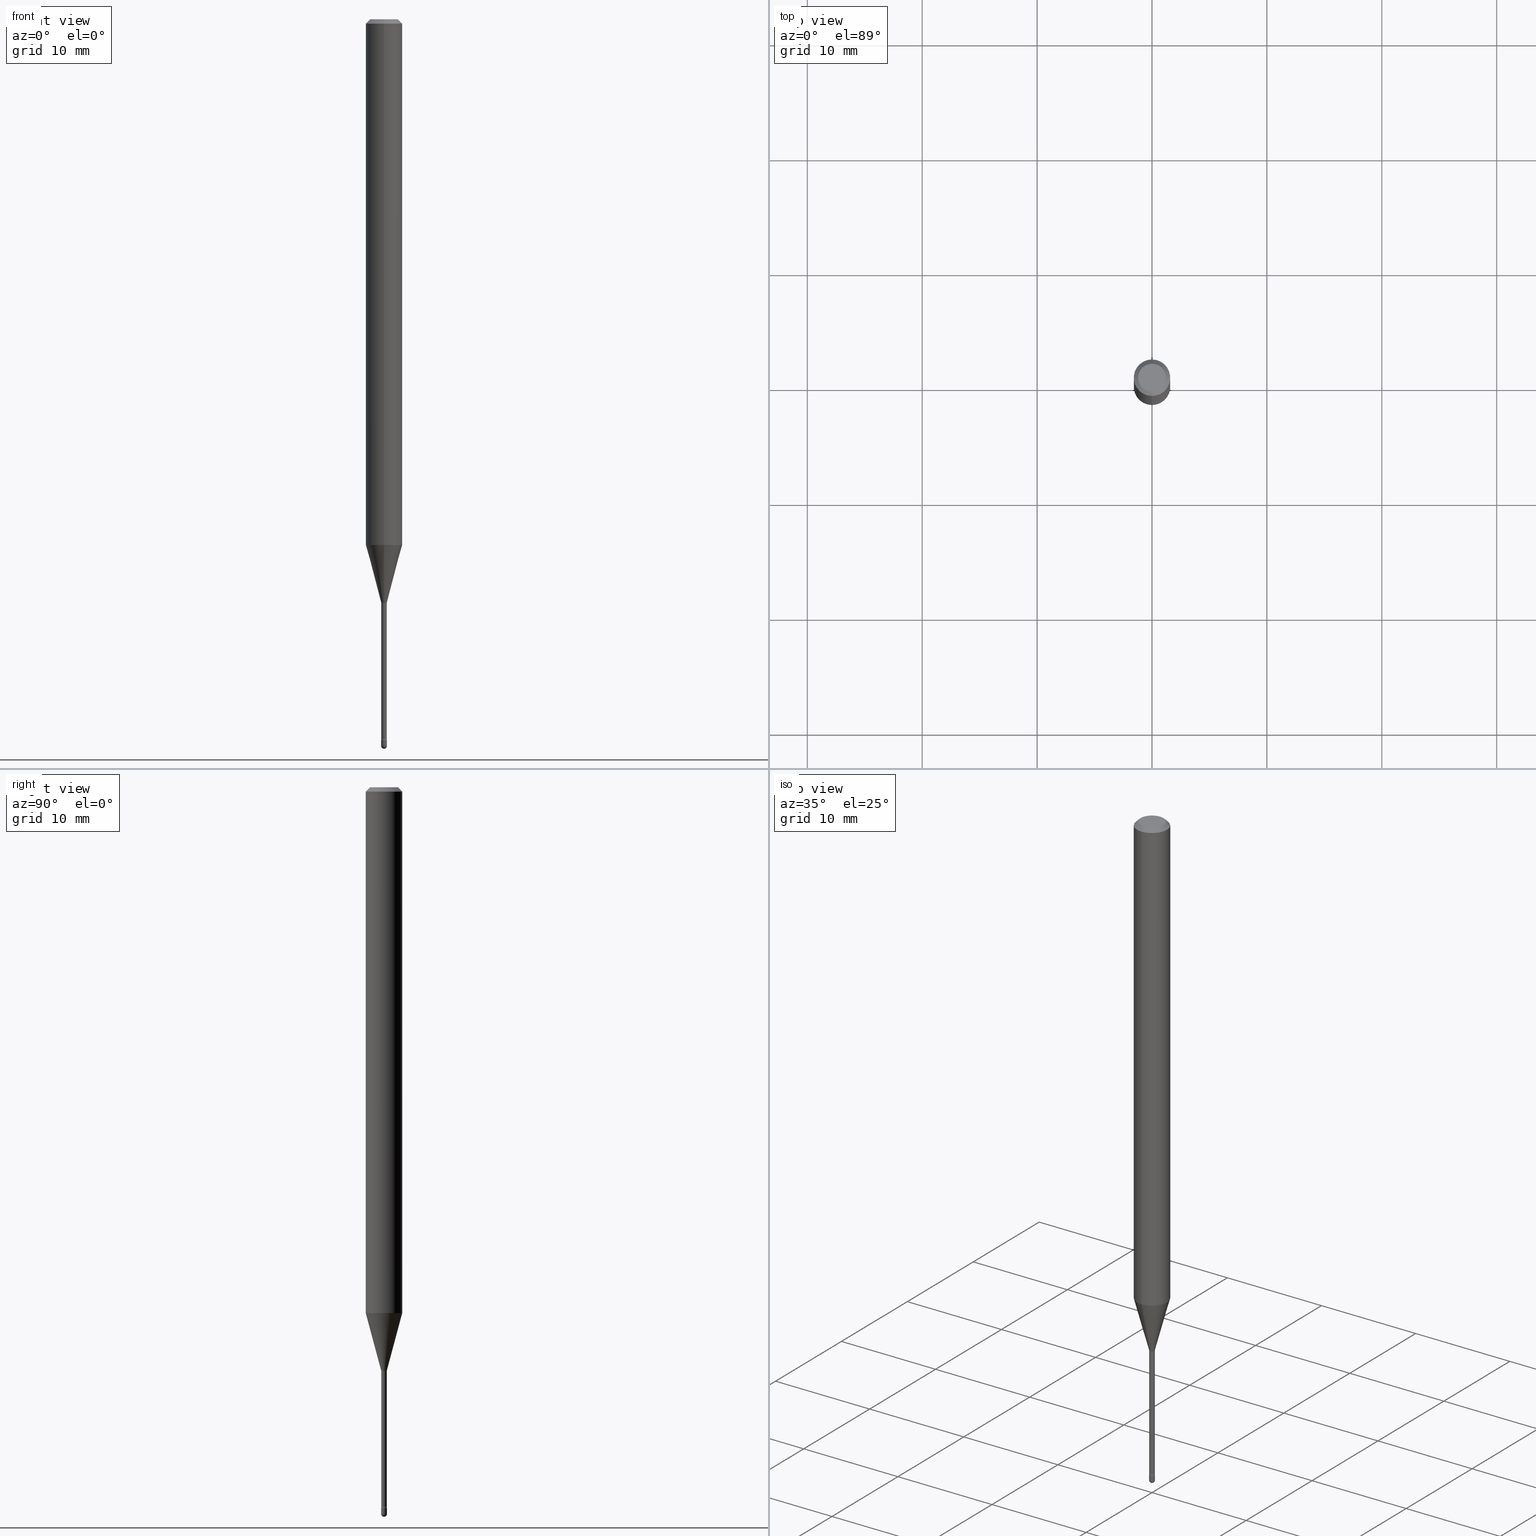
[diagram: canonical four-view strip — front | top / right | iso, engineering-drawing reading convention]
A machine part, canonical four-view strip (front | top / right | iso — engineering-drawing reading convention). The complete STEP part file that produces these views, byte-faithful:
ISO-10303-21;
HEADER;
FILE_DESCRIPTION (( 'STEP AP203' ),
    '1' );
FILE_NAME ('03969.STEP',
    '2024-04-09T21:32:13',
    ( '' ),
    ( '' ),
    'SwSTEP 2.0',
    'SolidWorks 2023',
    '' );
FILE_SCHEMA (( 'CONFIG_CONTROL_DESIGN' ));
ENDSEC;

DATA;
#1 = LOCAL_TIME ( 17, 32, 13.00000000000000000, #562 ) ;
#2 = VERTEX_POINT ( 'NONE', #338 ) ;
#3 = CC_DESIGN_PERSON_AND_ORGANIZATION_ASSIGNMENT ( #361, #529, ( #387 ) ) ;
#4 = ORIENTED_EDGE ( 'NONE', *, *, #124, .F. ) ;
#5 = CARTESIAN_POINT ( 'NONE',  ( 6.040307951277287977E-29, -8.623958906942569995E-15, -2.470000000000000195 ) ) ;
#6 = DIRECTION ( 'NONE',  ( -6.982962677686266711E-15, -1.000000000000000000, 3.491575678653247411E-15 ) ) ;
#7 = EDGE_CURVE ( 'NONE', #2, #33, #511, .T. ) ;
#8 = ORIENTED_EDGE ( 'NONE', *, *, #140, .T. ) ;
#9 = DATE_TIME_ROLE ( 'creation_date' ) ;
#10 = EDGE_LOOP ( 'NONE', ( #406, #296 ) ) ;
#11 = CARTESIAN_POINT ( 'NONE',  ( -4.364351673553912750E-16, -0.06250000000000005551, -0.01499999999999986587 ) ) ;
#12 = CIRCLE ( 'NONE', #507, 0.01500000000000001159 ) ;
#13 = ORIENTED_EDGE ( 'NONE', *, *, #34, .F. ) ;
#14 = PERSON_AND_ORGANIZATION ( #452, #231 ) ;
#15 = DIRECTION ( 'NONE',  ( -6.982962677686265922E-15, -1.000000000000000000, 0.000000000000000000 ) ) ;
#16 = EDGE_CURVE ( 'NONE', #312, #517, #496, .T. ) ;
#17 = DIRECTION ( 'NONE',  ( -2.445468806185136597E-29, 3.491481338843145583E-15, 1.000000000000000000 ) ) ;
#18 = CIRCLE ( 'NONE', #197, 0.01000000000000000021 ) ;
#19 = CARTESIAN_POINT ( 'NONE',  ( 0.000000000000000000, 0.000000000000000000, 0.000000000000000000 ) ) ;
#20 = DIRECTION ( 'NONE',  ( -2.445402929047840730E-29, 3.491575678653247017E-15, 1.000000000000000000 ) ) ;
#21 = ADVANCED_FACE ( 'NONE', ( #259 ), #239, .F. ) ;
#22 = DIRECTION ( 'NONE',  ( 6.982962677686265922E-15, 1.000000000000000000, 0.000000000000000000 ) ) ;
#23 = APPROVAL ( #82, 'UNSPECIFIED' ) ;
#24 = AXIS2_PLACEMENT_3D ( 'NONE', #396, #150, #275 ) ;
#25 = AXIS2_PLACEMENT_3D ( 'NONE', #132, #220, #379 ) ;
#26 = DIRECTION ( 'NONE',  ( 1.000000000000000000, -6.982962677686265922E-15, 4.883557194083112340E-29 ) ) ;
#27 = DIRECTION ( 'NONE',  ( 2.445402929047840730E-29, -3.491575678653247017E-15, -1.000000000000000000 ) ) ;
#28 = DIRECTION ( 'NONE',  ( -1.000000000000000000, 7.105427357601001070E-15, -4.926315508542082329E-29 ) ) ;
#29 = CARTESIAN_POINT ( 'NONE',  ( 6.040145234748166605E-29, -8.624191926273521930E-15, -2.470000000000000195 ) ) ;
#30 = DIRECTION ( 'NONE',  ( -2.445468806185136597E-29, 3.491481338843145583E-15, 1.000000000000000000 ) ) ;
#31 = CARTESIAN_POINT ( 'NONE',  ( 4.886141256379125747E-29, -6.976491182939862603E-15, -1.998092501787273045 ) ) ;
#32 = FACE_OUTER_BOUND ( 'NONE', #241, .T. ) ;
#33 = VERTEX_POINT ( 'NONE', #213 ) ;
#34 = EDGE_CURVE ( 'NONE', #144, #461, #354, .T. ) ;
#35 = DIRECTION ( 'NONE',  ( -2.445402929047840730E-29, 3.491575678653247017E-15, 1.000000000000000000 ) ) ;
#36 = ORIENTED_EDGE ( 'NONE', *, *, #455, .T. ) ;
#37 = CARTESIAN_POINT ( 'NONE',  ( 4.440892098501069896E-16, 0.06249999999999995143, -0.01500000000000030129 ) ) ;
#38 = CONICAL_SURFACE ( 'NONE', #399, 0.06250000000000000000, 0.7853981633974483900 ) ;
#39 = VECTOR ( 'NONE', #109, 39.37007874015748143 ) ;
#40 = DIRECTION ( 'NONE',  ( -2.445468806185136597E-29, 3.491481338843145583E-15, 1.000000000000000000 ) ) ;
#41 = CARTESIAN_POINT ( 'NONE',  ( 1.733724275255133657E-16, 0.02439999999999301061, -2.001974787463811190 ) ) ;
#42 = VERTEX_POINT ( 'NONE', #80 ) ;
#43 = DIRECTION ( 'NONE',  ( 1.000000000000000000, -6.982962677686235945E-15, 0.000000000000000000 ) ) ;
#44 = CARTESIAN_POINT ( 'NONE',  ( -0.01000000000000000021, 7.105427357601002007E-17, -4.918935090254906272E-31 ) ) ;
#45 = AXIS2_PLACEMENT_3D ( 'NONE', #97, #193, #530 ) ;
#46 = ORIENTED_EDGE ( 'NONE', *, *, #371, .F. ) ;
#47 = ORIENTED_EDGE ( 'NONE', *, *, #441, .F. ) ;
#48 = DIRECTION ( 'NONE',  ( -2.445402929047840449E-29, 3.491575678653247411E-15, 1.000000000000000000 ) ) ;
#49 = ORIENTED_EDGE ( 'NONE', *, *, #7, .F. ) ;
#50 = PERSON_AND_ORGANIZATION ( #452, #231 ) ;
#51 = LINE ( 'NONE', #170, #221 ) ;
#52 = AXIS2_PLACEMENT_3D ( 'NONE', #463, #378, #81 ) ;
#53 = CIRCLE ( 'NONE', #360, 0.009400000000000002104 ) ;
#54 = ORIENTED_EDGE ( 'NONE', *, *, #226, .F. ) ;
#55 = APPROVAL_STATUS ( 'not_yet_approved' ) ;
#56 = CARTESIAN_POINT ( 'NONE',  ( 6.679101716144956801E-17, 0.009400000000000021186, 4.452525875119055033E-16 ) ) ;
#57 = CARTESIAN_POINT ( 'NONE',  ( 6.982962677692383094E-17, 0.009999999999991347407, -2.489999999999999769 ) ) ;
#58 = ADVANCED_FACE ( 'NONE', ( #418 ), #407, .T. ) ;
#59 = CARTESIAN_POINT ( 'NONE',  ( 3.840629472727447874E-16, 0.04749999999999999362, -2.485923956665947374E-16 ) ) ;
#60 = ORIENTED_EDGE ( 'NONE', *, *, #333, .F. ) ;
#61 = LOCAL_TIME ( 17, 32, 13.00000000000000000, #101 ) ;
#62 = UNCERTAINTY_MEASURE_WITH_UNIT (LENGTH_MEASURE( 1.000000000000000082E-05 ), #474, 'distance_accuracy_value', 'NONE');
#63 = CARTESIAN_POINT ( 'NONE',  ( 6.029874542446166019E-29, -8.609527308423178071E-15, -2.465800000000000214 ) ) ;
#64 = EDGE_CURVE ( 'NONE', #454, #385, #300, .T. ) ;
#65 = PRODUCT_RELATED_PRODUCT_CATEGORY ( 'detail', '', ( #477 ) ) ;
#66 = CARTESIAN_POINT ( 'NONE',  ( 4.440892098500625669E-16, 0.06250000000000000000, 2.598499189754181247E-16 ) ) ;
#67 = CYLINDRICAL_SURFACE ( 'NONE', #301, 0.009400000000000021186 ) ;
#68 = DIRECTION ( 'NONE',  ( -6.982962677686269077E-15, -1.000000000000000000, 0.000000000000000000 ) ) ;
#69 = DIRECTION ( 'NONE',  ( -2.445402929047840730E-29, 3.491575678653247017E-15, 1.000000000000000000 ) ) ;
#70 = AXIS2_PLACEMENT_3D ( 'NONE', #505, #112, #291 ) ;
#71 = AXIS2_PLACEMENT_3D ( 'NONE', #542, #411, #22 ) ;
#72 = CARTESIAN_POINT ( 'NONE',  ( -1.169113584055446105E-44, 1.669184350826100908E-30, 4.780733988912460139E-16 ) ) ;
#73 = CARTESIAN_POINT ( 'NONE',  ( 0.01000000000000000021, -6.982962677686265724E-17, 4.876176775795935968E-31 ) ) ;
#74 = ADVANCED_FACE ( 'NONE', ( #320 ), #254, .T. ) ;
#75 = EDGE_LOOP ( 'NONE', ( #322, #36, #531, #46 ) ) ;
#76 = CARTESIAN_POINT ( 'NONE',  ( 4.895635009143931333E-29, -6.990046477185646326E-15, -2.001974787463811190 ) ) ;
#77 = EDGE_LOOP ( 'NONE', ( #508, #382, #481, #352 ) ) ;
#78 = FACE_OUTER_BOUND ( 'NONE', #10, .T. ) ;
#79 = DIRECTION ( 'NONE',  ( -2.445468806185136597E-29, 3.491481338843145583E-15, 1.000000000000000000 ) ) ;
#80 = CARTESIAN_POINT ( 'NONE',  ( 4.440892098501064966E-16, 0.06249999999999370642, -1.801828102118093300 ) ) ;
#81 = DIRECTION ( 'NONE',  ( -6.982962677686265922E-15, -1.000000000000000000, 0.000000000000000000 ) ) ;
#82 = APPROVAL_STATUS ( 'not_yet_approved' ) ;
#83 = AXIS2_PLACEMENT_3D ( 'NONE', #550, #69, #248 ) ;
#84 = EDGE_CURVE ( 'NONE', #42, #210, #334, .T. ) ;
#85 = AXIS2_PLACEMENT_3D ( 'NONE', #480, #265, #439 ) ;
#86 = DIRECTION ( 'NONE',  ( -1.000000000000000000, 6.982962677686265922E-15, -4.883557194083112340E-29 ) ) ;
#87 = CC_DESIGN_PERSON_AND_ORGANIZATION_ASSIGNMENT ( #129, #469, ( #477 ) ) ;
#88 = DIRECTION ( 'NONE',  ( -2.445402929047840730E-29, 3.491575678653247017E-15, 1.000000000000000000 ) ) ;
#89 = FACE_OUTER_BOUND ( 'NONE', #310, .T. ) ;
#90 = DIRECTION ( 'NONE',  ( 6.982962677686265922E-15, 1.000000000000000000, -3.483106191921935554E-15 ) ) ;
#91 = ORIENTED_EDGE ( 'NONE', *, *, #16, .F. ) ;
#92 = AXIS2_PLACEMENT_3D ( 'NONE', #63, #238, #242 ) ;
#93 = CIRCLE ( 'NONE', #534, 0.06250000000000000000 ) ;
#94 = ORIENTED_EDGE ( 'NONE', *, *, #191, .T. ) ;
#95 = EDGE_LOOP ( 'NONE', ( #311, #136 ) ) ;
#96 = COORDINATED_UNIVERSAL_TIME_OFFSET ( 5, 0, .BEHIND. ) ;
#97 = CARTESIAN_POINT ( 'NONE',  ( 6.982962677692306673E-17, 0.009999999999991375163, -2.470000000000000195 ) ) ;
#98 = AXIS2_PLACEMENT_3D ( 'NONE', #383, #516, #138 ) ;
#99 = CC_DESIGN_APPROVAL ( #23, ( #526 ) ) ;
#100 = FACE_OUTER_BOUND ( 'NONE', #426, .T. ) ;
#101 = COORDINATED_UNIVERSAL_TIME_OFFSET ( 5, 0, .BEHIND. ) ;
#102 = ADVANCED_FACE ( 'NONE', ( #123 ), #419, .T. ) ;
#103 = DESIGN_CONTEXT ( 'detailed design', #118, 'design' ) ;
#104 = CARTESIAN_POINT ( 'NONE',  ( -4.287811248607203282E-16, -0.06250000000000005551, -0.01499999999999986587 ) ) ;
#105 = ORIENTED_EDGE ( 'NONE', *, *, #64, .T. ) ;
#106 = ORIENTED_EDGE ( 'NONE', *, *, #340, .F. ) ;
#107 = CIRCLE ( 'NONE', #162, 0.01000000000000000021 ) ;
#108 = CARTESIAN_POINT ( 'NONE',  ( -1.703842893354959526E-16, -0.02440000000000699248, -2.001974787463811190 ) ) ;
#109 = DIRECTION ( 'NONE',  ( -2.445402929047840449E-29, 3.491575678653247411E-15, 1.000000000000000000 ) ) ;
#110 = FACE_OUTER_BOUND ( 'NONE', #404, .T. ) ;
#111 = LINE ( 'NONE', #501, #524 ) ;
#112 = DIRECTION ( 'NONE',  ( -2.445402929047840730E-29, 3.491575678653247017E-15, 1.000000000000000000 ) ) ;
#113 = ADVANCED_FACE ( 'NONE', ( #32 ), #556, .T. ) ;
#114 = DIRECTION ( 'NONE',  ( -2.445402929047840730E-29, 3.491575678653247017E-15, 1.000000000000000000 ) ) ;
#115 = EDGE_LOOP ( 'NONE', ( #190, #54, #438, #487 ) ) ;
#116 = AXIS2_PLACEMENT_3D ( 'NONE', #403, #205, #274 ) ;
#117 = CARTESIAN_POINT ( 'NONE',  ( -6.563984917019089804E-17, -0.009400000000008651435, -2.465800000000000214 ) ) ;
#118 = APPLICATION_CONTEXT ( 'configuration controlled 3d designs of mechanical parts and assemblies' ) ;
#119 = DIRECTION ( 'NONE',  ( 1.000000000000000000, -6.982962677686265922E-15, 4.876176775795935793E-29 ) ) ;
#120 = ORIENTED_EDGE ( 'NONE', *, *, #124, .T. ) ;
#121 = FACE_OUTER_BOUND ( 'NONE', #279, .T. ) ;
#122 = ORIENTED_EDGE ( 'NONE', *, *, #491, .T. ) ;
#123 = FACE_OUTER_BOUND ( 'NONE', #495, .T. ) ;
#124 = EDGE_CURVE ( 'NONE', #321, #385, #521, .T. ) ;
#125 = ORIENTED_EDGE ( 'NONE', *, *, #286, .F. ) ;
#126 = DIRECTION ( 'NONE',  ( -2.445402929047840730E-29, 3.491575678653247017E-15, 1.000000000000000000 ) ) ;
#127 = APPROVAL ( #401, 'UNSPECIFIED' ) ;
#128 = CONICAL_SURFACE ( 'NONE', #442, 0.06250000000000000000, 0.7853981633974483900 ) ;
#129 = PERSON_AND_ORGANIZATION ( #452, #231 ) ;
#130 = AXIS2_PLACEMENT_3D ( 'NONE', #251, #35, #330 ) ;
#131 = ORIENTED_EDGE ( 'NONE', *, *, #16, .T. ) ;
#132 = CARTESIAN_POINT ( 'NONE',  ( 6.040307951277287977E-29, -8.623958906942569995E-15, -2.470000000000000195 ) ) ;
#133 = FACE_OUTER_BOUND ( 'NONE', #145, .T. ) ;
#134 = ORIENTED_EDGE ( 'NONE', *, *, #149, .T. ) ;
#135 = FACE_OUTER_BOUND ( 'NONE', #464, .T. ) ;
#136 = ORIENTED_EDGE ( 'NONE', *, *, #522, .T. ) ;
#137 = DIRECTION ( 'NONE',  ( -2.445402929047840730E-29, 3.491575678653247017E-15, 1.000000000000000000 ) ) ;
#138 = DIRECTION ( 'NONE',  ( -6.982962677686265922E-15, -1.000000000000000000, 3.483106191921935554E-15 ) ) ;
#139 = ORIENTED_EDGE ( 'NONE', *, *, #149, .F. ) ;
#140 = EDGE_CURVE ( 'NONE', #545, #295, #214, .T. ) ;
#141 =( NAMED_UNIT ( * ) PLANE_ANGLE_UNIT ( ) SI_UNIT ( $, .RADIAN. ) );
#142 = AXIS2_PLACEMENT_3D ( 'NONE', #409, #28, #502 ) ;
#143 = AXIS2_PLACEMENT_3D ( 'NONE', #307, #174, #564 ) ;
#144 = VERTEX_POINT ( 'NONE', #59 ) ;
#145 = EDGE_LOOP ( 'NONE', ( #528, #8, #344, #13 ) ) ;
#146 = PLANE ( 'NONE',  #45 ) ;
#147 = ORIENTED_EDGE ( 'NONE', *, *, #151, .T. ) ;
#148 = DATE_TIME_ROLE ( 'classification_date' ) ;
#149 = EDGE_CURVE ( 'NONE', #454, #389, #188, .T. ) ;
#150 = DIRECTION ( 'NONE',  ( -2.445402929047840730E-29, 3.491575678653247017E-15, 1.000000000000000000 ) ) ;
#151 = EDGE_CURVE ( 'NONE', #492, #398, #482, .T. ) ;
#152 = CALENDAR_DATE ( 2024, 9, 4 ) ;
#153 = VECTOR ( 'NONE', #252, 39.37007874015748143 ) ;
#154 = LOCAL_TIME ( 17, 32, 13.00000000000000000, #444 ) ;
#155 = ORIENTED_EDGE ( 'NONE', *, *, #84, .F. ) ;
#156 = APPROVAL_ROLE ( '' ) ;
#157 = CARTESIAN_POINT ( 'NONE',  ( 4.886141256379125747E-29, -6.976491182939862603E-15, -1.998092501787273045 ) ) ;
#158 = PERSON_AND_ORGANIZATION ( #452, #231 ) ;
#159 = CARTESIAN_POINT ( 'NONE',  ( 6.679101716150986656E-17, 0.009399999999993011168, -2.001974787463811190 ) ) ;
#160 = VECTOR ( 'NONE', #332, 39.37007874015748143 ) ;
#161 = CIRCLE ( 'NONE', #70, 0.009911112605663983943 ) ;
#162 = AXIS2_PLACEMENT_3D ( 'NONE', #5, #341, #43 ) ;
#163 = CARTESIAN_POINT ( 'NONE',  ( 2.023073822955587175E-45, -2.889469797725561584E-31, -8.274255093056550460E-17 ) ) ;
#164 = FACE_OUTER_BOUND ( 'NONE', #559, .T. ) ;
#165 = ADVANCED_FACE ( 'NONE', ( #110 ), #306, .F. ) ;
#166 = FACE_OUTER_BOUND ( 'NONE', #304, .T. ) ;
#167 = DIRECTION ( 'NONE',  ( 6.982962677686265922E-15, 1.000000000000000000, -3.483106191921935554E-15 ) ) ;
#168 = FACE_OUTER_BOUND ( 'NONE', #75, .T. ) ;
#169 = CARTESIAN_POINT ( 'NONE',  ( -4.364351673553916201E-16, -0.06250000000000000000, 6.962968788070740511E-16 ) ) ;
#170 = CARTESIAN_POINT ( 'NONE',  ( -6.563984917025104868E-17, -0.009400000000000021186, 5.108942102705866231E-16 ) ) ;
#171 = AXIS2_PLACEMENT_3D ( 'NONE', #31, #137, #440 ) ;
#172 = DIRECTION ( 'NONE',  ( -6.982962677686265922E-15, -1.000000000000000000, 3.491575678653247805E-15 ) ) ;
#173 = ORIENTED_EDGE ( 'NONE', *, *, #356, .T. ) ;
#174 = DIRECTION ( 'NONE',  ( -2.445468806185136597E-29, 3.491481338843145583E-15, 1.000000000000000000 ) ) ;
#175 = APPLICATION_CONTEXT ( 'configuration controlled 3d designs of mechanical parts and assemblies' ) ;
#176 = ORIENTED_EDGE ( 'NONE', *, *, #333, .T. ) ;
#177 = APPROVAL ( #55, 'UNSPECIFIED' ) ;
#178 = CALENDAR_DATE ( 2024, 9, 4 ) ;
#179 = CARTESIAN_POINT ( 'NONE',  ( 2.023073822955587175E-45, -2.889469797725561584E-31, -8.274255093056550460E-17 ) ) ;
#180 = CYLINDRICAL_SURFACE ( 'NONE', #282, 0.06250000000000000000 ) ;
#181 = APPROVAL_PERSON_ORGANIZATION ( #394, #127, #489 ) ;
#182 = PLANE ( 'NONE',  #25 ) ;
#183 = ADVANCED_FACE ( 'NONE', ( #289 ), #38, .T. ) ;
#184 = LINE ( 'NONE', #260, #367 ) ;
#185 = DIRECTION ( 'NONE',  ( 7.105427357601005014E-15, 1.000000000000000000, 0.000000000000000000 ) ) ;
#186 = ORIENTED_EDGE ( 'NONE', *, *, #276, .F. ) ;
#187 = PERSON_AND_ORGANIZATION_ROLE ( 'creator' ) ;
#188 = CIRCLE ( 'NONE', #92, 0.009400000000000042003 ) ;
#189 = CIRCLE ( 'NONE', #201, 0.009911112605663983943 ) ;
#190 = ORIENTED_EDGE ( 'NONE', *, *, #140, .F. ) ;
#191 = EDGE_CURVE ( 'NONE', #312, #537, #161, .T. ) ;
#192 = EDGE_CURVE ( 'NONE', #467, #2, #459, .T. ) ;
#193 = DIRECTION ( 'NONE',  ( -2.445402929047840169E-29, 3.491575678653247411E-15, 1.000000000000000000 ) ) ;
#194 = APPROVAL_DATE_TIME ( #234, #127 ) ;
#195 = CARTESIAN_POINT ( 'NONE',  ( 6.089217327400989947E-29, -8.693788533719431716E-15, -2.489999999999999769 ) ) ;
#196 = AXIS2_PLACEMENT_3D ( 'NONE', #395, #86, #560 ) ;
#197 = AXIS2_PLACEMENT_3D ( 'NONE', #29, #370, #199 ) ;
#198 = CALENDAR_DATE ( 2024, 9, 4 ) ;
#199 = DIRECTION ( 'NONE',  ( -6.982962677686265922E-15, -1.000000000000000000, 0.000000000000000000 ) ) ;
#200 = CIRCLE ( 'NONE', #98, 0.06250000000000000000 ) ;
#201 = AXIS2_PLACEMENT_3D ( 'NONE', #157, #446, #235 ) ;
#202 = EDGE_CURVE ( 'NONE', #467, #366, #428, .T. ) ;
#203 = CARTESIAN_POINT ( 'NONE',  ( 3.316907271900976096E-16, 0.04749999999999999362, 3.181557924431100338E-17 ) ) ;
#204 = EDGE_CURVE ( 'NONE', #210, #295, #552, .T. ) ;
#205 = DIRECTION ( 'NONE',  ( -2.445402929047840730E-29, 3.491575678653247017E-15, 1.000000000000000000 ) ) ;
#206 = CARTESIAN_POINT ( 'NONE',  ( -0.01000000000000000021, -8.587819446754991563E-15, -2.489999999999999769 ) ) ;
#207 = DIRECTION ( 'NONE',  ( 1.000000000000000000, -6.982962677686235945E-15, 0.000000000000000000 ) ) ;
#208 = ORIENTED_EDGE ( 'NONE', *, *, #465, .T. ) ;
#209 = CARTESIAN_POINT ( 'NONE',  ( 1.733724275255251247E-16, 0.02439999999999144589, -2.465800000000000214 ) ) ;
#210 = VERTEX_POINT ( 'NONE', #347 ) ;
#211 = APPROVAL_PERSON_ORGANIZATION ( #392, #23, #215 ) ;
#212 = SPHERICAL_SURFACE ( 'NONE', #71, 0.01000000000000008347 ) ;
#213 = CARTESIAN_POINT ( 'NONE',  ( -0.01000000000000000021, -8.587819446754991563E-15, -2.470000000000000195 ) ) ;
#214 = LINE ( 'NONE', #104, #376 ) ;
#215 = APPROVAL_ROLE ( '' ) ;
#216 = DIRECTION ( 'NONE',  ( 2.445402929047840730E-29, -3.491575678653247017E-15, -1.000000000000000000 ) ) ;
#217 = DIRECTION ( 'NONE',  ( 1.000000000000000000, -7.105427357601001070E-15, 4.926316663871547024E-29 ) ) ;
#218 = EDGE_CURVE ( 'NONE', #295, #461, #292, .T. ) ;
#219 = CIRCLE ( 'NONE', #533, 0.04749999999999999362 ) ;
#220 = DIRECTION ( 'NONE',  ( -2.438088387897960049E-29, 3.491481338843145188E-15, 1.000000000000000000 ) ) ;
#221 = VECTOR ( 'NONE', #48, 39.37007874015748143 ) ;
#222 = PRODUCT_DEFINITION_SHAPE ( 'NONE', 'NONE',  #526 ) ;
#223 = MECHANICAL_CONTEXT ( 'NONE', #175, 'mechanical' ) ;
#224 = ORIENTED_EDGE ( 'NONE', *, *, #415, .F. ) ;
#225 = CALENDAR_DATE ( 2024, 9, 4 ) ;
#226 = EDGE_CURVE ( 'NONE', #144, #545, #470, .T. ) ;
#227 = ORIENTED_EDGE ( 'NONE', *, *, #244, .T. ) ;
#228 = DATE_AND_TIME ( #198, #154 ) ;
#229 = ADVANCED_FACE ( 'NONE', ( #133 ), #128, .T. ) ;
#230 = AXIS2_PLACEMENT_3D ( 'NONE', #163, #88, #6 ) ;
#231 = ORGANIZATION ( 'UNSPECIFIED', 'UNSPECIFIED', '' ) ;
#232 = CIRCLE ( 'NONE', #351, 0.01000000000000000021 ) ;
#233 = ORIENTED_EDGE ( 'NONE', *, *, #479, .T. ) ;
#234 = DATE_AND_TIME ( #493, #488 ) ;
#235 = DIRECTION ( 'NONE',  ( -6.982962677686264344E-15, -1.000000000000000000, 0.000000000000000000 ) ) ;
#236 = ORIENTED_EDGE ( 'NONE', *, *, #429, .T. ) ;
#237 = EDGE_CURVE ( 'NONE', #420, #33, #390, .T. ) ;
#238 = DIRECTION ( 'NONE',  ( -2.445402929047840730E-29, 3.491575678653247017E-15, 1.000000000000000000 ) ) ;
#239 = TOROIDAL_SURFACE ( 'NONE', #544, 0.02440000000000000155, 0.01500000000000002373 ) ;
#240 = AXIS2_PLACEMENT_3D ( 'NONE', #325, #297, #421 ) ;
#241 = EDGE_LOOP ( 'NONE', ( #541, #173, #233, #155 ) ) ;
#242 = DIRECTION ( 'NONE',  ( -6.982962677686265133E-15, -1.000000000000000000, 0.000000000000000000 ) ) ;
#243 = DIRECTION ( 'NONE',  ( 6.982962677686265922E-15, 1.000000000000000000, -3.491575678653247411E-15 ) ) ;
#244 = EDGE_CURVE ( 'NONE', #537, #42, #184, .T. ) ;
#245 = DIRECTION ( 'NONE',  ( 1.000000000000000000, -6.982962677686235945E-15, 0.000000000000000000 ) ) ;
#246 = ORIENTED_EDGE ( 'NONE', *, *, #64, .F. ) ;
#247 = DIRECTION ( 'NONE',  ( 1.000000000000000000, -7.105427357601001070E-15, 4.926316663871547024E-29 ) ) ;
#248 = DIRECTION ( 'NONE',  ( -6.982962677686265922E-15, -1.000000000000000000, 3.491575678653247411E-15 ) ) ;
#249 = CLOSED_SHELL ( 'NONE', ( #165, #456, #514, #229, #500, #58, #113, #74, #183, #408, #305, #324, #425, #21 ) ) ;
#250 = AXIS2_PLACEMENT_3D ( 'NONE', #195, #17, #245 ) ;
#251 = CARTESIAN_POINT ( 'NONE',  ( -1.169113584055446105E-44, 1.669184350826100908E-30, 4.780733988912460139E-16 ) ) ;
#252 = DIRECTION ( 'NONE',  ( -2.445468806185136877E-29, 3.491481338843145188E-15, 1.000000000000000000 ) ) ;
#253 = DIRECTION ( 'NONE',  ( 4.937700262164548042E-15, 0.7071067811865451302, -0.7071067811865499042 ) ) ;
#254 = CYLINDRICAL_SURFACE ( 'NONE', #565, 0.06250000000000000000 ) ;
#255 = ORIENTED_EDGE ( 'NONE', *, *, #563, .F. ) ;
#256 = CARTESIAN_POINT ( 'NONE',  ( -6.982962677680232171E-17, -0.01000000000000863046, -2.470000000000000195 ) ) ;
#257 = ORIENTED_EDGE ( 'NONE', *, *, #237, .T. ) ;
#258 = DIRECTION ( 'NONE',  ( 7.105427357601001859E-15, 1.000000000000000000, 0.000000000000000000 ) ) ;
#259 = FACE_OUTER_BOUND ( 'NONE', #263, .T. ) ;
#260 = CARTESIAN_POINT ( 'NONE',  ( 7.042269065259786950E-17, 0.009911112605657006885, -1.998092501787273045 ) ) ;
#261 = EDGE_CURVE ( 'NONE', #461, #295, #200, .T. ) ;
#262 = CARTESIAN_POINT ( 'NONE',  ( -6.920892941964860523E-17, -0.009911112605670961001, -1.998092501787273045 ) ) ;
#263 = EDGE_LOOP ( 'NONE', ( #255, #391, #131, #208 ) ) ;
#264 = AXIS2_PLACEMENT_3D ( 'NONE', #468, #281, #336 ) ;
#265 = DIRECTION ( 'NONE',  ( 0.000000000000000000, 0.000000000000000000, 1.000000000000000000 ) ) ;
#266 = CIRCLE ( 'NONE', #335, 0.01500000000000001853 ) ;
#267 = ORIENTED_EDGE ( 'NONE', *, *, #356, .F. ) ;
#268 = LENGTH_MEASURE_WITH_UNIT ( LENGTH_MEASURE( 0.02539999999999999897 ), #518 );
#269 = CC_DESIGN_DATE_AND_TIME_ASSIGNMENT ( #228, #148, ( #387 ) ) ;
#270 = COORDINATED_UNIVERSAL_TIME_OFFSET ( 5, 0, .BEHIND. ) ;
#271 = PERSON_AND_ORGANIZATION_ROLE ( 'design_supplier' ) ;
#272 = VECTOR ( 'NONE', #253, 39.37007874015748143 ) ;
#273 = CIRCLE ( 'NONE', #414, 0.01000000000000008347 ) ;
#274 = DIRECTION ( 'NONE',  ( -6.982962677686265922E-15, -1.000000000000000000, 3.491575678653246622E-15 ) ) ;
#275 = DIRECTION ( 'NONE',  ( -6.982962677686265922E-15, -1.000000000000000000, 3.483106191921935554E-15 ) ) ;
#276 = EDGE_CURVE ( 'NONE', #389, #454, #386, .T. ) ;
#277 = APPROVAL_DATE_TIME ( #510, #23 ) ;
#278 = LINE ( 'NONE', #56, #342 ) ;
#279 = EDGE_LOOP ( 'NONE', ( #134, #176, #397, #125 ) ) ;
#280 = PERSON_AND_ORGANIZATION_ROLE ( 'creator' ) ;
#281 = DIRECTION ( 'NONE',  ( -2.445402929047840730E-29, 3.491575678653247017E-15, 1.000000000000000000 ) ) ;
#282 = AXIS2_PLACEMENT_3D ( 'NONE', #384, #431, #558 ) ;
#283 = ORIENTED_EDGE ( 'NONE', *, *, #237, .F. ) ;
#284 = EDGE_CURVE ( 'NONE', #545, #144, #219, .T. ) ;
#285 = DIRECTION ( 'NONE',  ( -2.445402929047840730E-29, 3.491575678653247017E-15, 1.000000000000000000 ) ) ;
#286 = EDGE_CURVE ( 'NONE', #454, #517, #51, .T. ) ;
#287 = DIRECTION ( 'NONE',  ( -2.445402929047840730E-29, 3.491575678653247017E-15, 1.000000000000000000 ) ) ;
#288 = DIRECTION ( 'NONE',  ( -1.000000000000000000, 6.982962677686265922E-15, -4.883557194083112340E-29 ) ) ;
#289 = FACE_OUTER_BOUND ( 'NONE', #115, .T. ) ;
#290 = DIRECTION ( 'NONE',  ( -6.982962677686265922E-15, -1.000000000000000000, 4.370956789862821150E-15 ) ) ;
#291 = DIRECTION ( 'NONE',  ( -6.982962677686264344E-15, -1.000000000000000000, 0.000000000000000000 ) ) ;
#292 = CIRCLE ( 'NONE', #24, 0.06250000000000000000 ) ;
#293 = ORIENTED_EDGE ( 'NONE', *, *, #340, .T. ) ;
#294 = DIRECTION ( 'NONE',  ( -1.000000000000000000, 6.982962677686265922E-15, -4.883557194083112340E-29 ) ) ;
#295 = VERTEX_POINT ( 'NONE', #11 ) ;
#296 = ORIENTED_EDGE ( 'NONE', *, *, #284, .T. ) ;
#297 = DIRECTION ( 'NONE',  ( -2.445468806185136597E-29, 3.491481338843145583E-15, 1.000000000000000000 ) ) ;
#298 = CARTESIAN_POINT ( 'NONE',  ( 6.040307951277287977E-29, -8.623958906942569995E-15, -2.470000000000000195 ) ) ;
#299 = APPLICATION_PROTOCOL_DEFINITION ( 'international standard', 'config_control_design', 1994, #175 ) ;
#300 = CIRCLE ( 'NONE', #196, 0.01500000000000001853 ) ;
#301 = AXIS2_PLACEMENT_3D ( 'NONE', #72, #285, #172 ) ;
#302 = DIRECTION ( 'NONE',  ( -2.445402929047840730E-29, 3.491575678653247017E-15, 1.000000000000000000 ) ) ;
#303 = DIRECTION ( 'NONE',  ( -6.982962677686265922E-15, -1.000000000000000000, 3.491575678653246622E-15 ) ) ;
#304 = EDGE_LOOP ( 'NONE', ( #540, #147, #393, #47 ) ) ;
#305 = ADVANCED_FACE ( 'NONE', ( #135 ), #146, .F. ) ;
#306 = TOROIDAL_SURFACE ( 'NONE', #83, 0.02440000000000000155, 0.01500000000000002373 ) ;
#307 = CARTESIAN_POINT ( 'NONE',  ( 0.000000000000000000, 0.000000000000000000, 0.000000000000000000 ) ) ;
#308 = PRODUCT_DEFINITION_FORMATION_WITH_SPECIFIED_SOURCE ( 'ANY', '', #477, .NOT_KNOWN. ) ;
#309 = CC_DESIGN_APPROVAL ( #177, ( #387 ) ) ;
#310 = EDGE_LOOP ( 'NONE', ( #186, #355, #120, #246 ) ) ;
#311 = ORIENTED_EDGE ( 'NONE', *, *, #7, .T. ) ;
#312 = VERTEX_POINT ( 'NONE', #262 ) ;
#313 = MANIFOLD_SOLID_BREP ( 'Body-Move/Copy2[1]', #449 ) ;
#314 = ORIENTED_EDGE ( 'NONE', *, *, #276, .T. ) ;
#315 = APPROVAL_DATE_TIME ( #525, #177 ) ;
#316 = AXIS2_PLACEMENT_3D ( 'NONE', #490, #114, #339 ) ;
#317 = CC_DESIGN_APPROVAL ( #127, ( #308 ) ) ;
#318 = ORIENTED_EDGE ( 'NONE', *, *, #286, .T. ) ;
#319 = DIRECTION ( 'NONE',  ( -2.445402929047840730E-29, 3.491575678653247017E-15, 1.000000000000000000 ) ) ;
#320 = FACE_OUTER_BOUND ( 'NONE', #77, .T. ) ;
#321 = VERTEX_POINT ( 'NONE', #432 ) ;
#322 = ORIENTED_EDGE ( 'NONE', *, *, #151, .F. ) ;
#323 = ORIENTED_EDGE ( 'NONE', *, *, #522, .F. ) ;
#324 = ADVANCED_FACE ( 'NONE', ( #100 ), #483, .F. ) ;
#325 = CARTESIAN_POINT ( 'NONE',  ( 6.089217327400989947E-29, -8.693788533719431716E-15, -2.489999999999999769 ) ) ;
#326 = PLANE ( 'NONE',  #450 ) ;
#327 = SPHERICAL_SURFACE ( 'NONE', #512, 0.01000000000000008347 ) ;
#328 = CARTESIAN_POINT ( 'NONE',  ( -1.169113584055446105E-44, 1.669184350826100908E-30, 4.780733988912460139E-16 ) ) ;
#329 = ORIENTED_EDGE ( 'NONE', *, *, #202, .T. ) ;
#330 = DIRECTION ( 'NONE',  ( -6.982962677686265922E-15, -1.000000000000000000, 3.491575678653247805E-15 ) ) ;
#331 = EDGE_LOOP ( 'NONE', ( #364, #257, #49, #373, #329 ) ) ;
#332 = DIRECTION ( 'NONE',  ( -2.445402929047840449E-29, 3.491575678653247411E-15, 1.000000000000000000 ) ) ;
#333 = EDGE_CURVE ( 'NONE', #389, #433, #278, .T. ) ;
#334 = CIRCLE ( 'NONE', #316, 0.06250000000000000000 ) ;
#335 = AXIS2_PLACEMENT_3D ( 'NONE', #41, #217, #185 ) ;
#336 = DIRECTION ( 'NONE',  ( -6.982962677686264344E-15, -1.000000000000000000, 0.000000000000000000 ) ) ;
#337 = CARTESIAN_POINT ( 'NONE',  ( 0.01000000000000000021, -8.728703347107863365E-15, -2.489999999999999769 ) ) ;
#338 = CARTESIAN_POINT ( 'NONE',  ( 0.01000000000000000021, -8.693788533719433294E-15, -2.470000000000000195 ) ) ;
#339 = DIRECTION ( 'NONE',  ( -6.982962677686265922E-15, -1.000000000000000000, 4.370956789862821150E-15 ) ) ;
#340 = EDGE_CURVE ( 'NONE', #433, #517, #435, .T. ) ;
#341 = DIRECTION ( 'NONE',  ( -2.445468806185136597E-29, 3.491481338843145583E-15, 1.000000000000000000 ) ) ;
#342 = VECTOR ( 'NONE', #535, 39.37007874015748143 ) ;
#343 = CARTESIAN_POINT ( 'NONE',  ( 6.030036982291310238E-29, -8.609294685319429365E-15, -2.465800000000000214 ) ) ;
#344 = ORIENTED_EDGE ( 'NONE', *, *, #218, .T. ) ;
#345 = EDGE_LOOP ( 'NONE', ( #60, #314, #318, #106 ) ) ;
#346 = CARTESIAN_POINT ( 'NONE',  ( 2.572559502513523864E-16, 0.009911112605657006885, -1.998092501787273045 ) ) ;
#347 = CARTESIAN_POINT ( 'NONE',  ( -4.364351673553476411E-16, -0.06250000000000630052, -1.801828102118092856 ) ) ;
#348 = ORIENTED_EDGE ( 'NONE', *, *, #400, .F. ) ;
#349 = AXIS2_PLACEMENT_3D ( 'NONE', #298, #79, #410 ) ;
#350 = PERSON_AND_ORGANIZATION ( #452, #231 ) ;
#351 = AXIS2_PLACEMENT_3D ( 'NONE', #554, #412, #504 ) ;
#352 = ORIENTED_EDGE ( 'NONE', *, *, #261, .F. ) ;
#353 = DATE_AND_TIME ( #152, #546 ) ;
#354 = LINE ( 'NONE', #548, #272 ) ;
#355 = ORIENTED_EDGE ( 'NONE', *, *, #415, .T. ) ;
#356 = EDGE_CURVE ( 'NONE', #537, #312, #189, .T. ) ;
#357 = ADVANCED_BREP_SHAPE_REPRESENTATION ( '03969', ( #313, #499, #85 ), #557 ) ;
#358 = CC_DESIGN_PERSON_AND_ORGANIZATION_ASSIGNMENT ( #50, #271, ( #308 ) ) ;
#359 = VECTOR ( 'NONE', #427, 39.37007874015748143 ) ;
#360 = AXIS2_PLACEMENT_3D ( 'NONE', #76, #416, #551 ) ;
#361 = PERSON_AND_ORGANIZATION ( #452, #231 ) ;
#362 = EDGE_CURVE ( 'NONE', #420, #398, #443, .T. ) ;
#363 = ORIENTED_EDGE ( 'NONE', *, *, #371, .T. ) ;
#364 = ORIENTED_EDGE ( 'NONE', *, *, #441, .T. ) ;
#365 = DIRECTION ( 'NONE',  ( -1.807323732225328562E-15, -0.2588190451025179639, 0.9659258262890690894 ) ) ;
#366 = VERTEX_POINT ( 'NONE', #57 ) ;
#367 = VECTOR ( 'NONE', #476, 39.37007874015748854 ) ;
#368 = AXIS2_PLACEMENT_3D ( 'NONE', #405, #319, #15 ) ;
#369 = CC_DESIGN_SECURITY_CLASSIFICATION ( #387, ( #308 ) ) ;
#370 = DIRECTION ( 'NONE',  ( -2.445402929047840730E-29, 3.491575678653247017E-15, 1.000000000000000000 ) ) ;
#371 = EDGE_CURVE ( 'NONE', #398, #467, #472, .T. ) ;
#372 = CARTESIAN_POINT ( 'NONE',  ( -7.105427357594942569E-17, -0.01000000000000873281, -2.489999999999999769 ) ) ;
#373 = ORIENTED_EDGE ( 'NONE', *, *, #192, .F. ) ;
#374 = CARTESIAN_POINT ( 'NONE',  ( 6.089217327400989947E-29, -8.693788533719431716E-15, -2.489999999999999769 ) ) ;
#375 = ORIENTED_EDGE ( 'NONE', *, *, #204, .F. ) ;
#376 = VECTOR ( 'NONE', #447, 39.37007874015748143 ) ;
#377 = TOROIDAL_SURFACE ( 'NONE', #498, 0.02440000000000005706, 0.01500000000000001506 ) ;
#378 = DIRECTION ( 'NONE',  ( -2.445402929047840730E-29, 3.491575678653247017E-15, 1.000000000000000000 ) ) ;
#379 = DIRECTION ( 'NONE',  ( 1.000000000000000000, -6.982962677686265922E-15, 4.876176775795935793E-29 ) ) ;
#380 = CARTESIAN_POINT ( 'NONE',  ( 4.895766893511868006E-29, -6.989857611264368100E-15, -2.001974787463811190 ) ) ;
#381 = FACE_OUTER_BOUND ( 'NONE', #95, .T. ) ;
#382 = ORIENTED_EDGE ( 'NONE', *, *, #84, .T. ) ;
#383 = CARTESIAN_POINT ( 'NONE',  ( 3.668104393571781536E-31, -5.237363517979899540E-17, -0.01500000000000008271 ) ) ;
#384 = CARTESIAN_POINT ( 'NONE',  ( -1.169113584055446105E-44, 1.669184350826100908E-30, 4.780733988912460139E-16 ) ) ;
#385 = VERTEX_POINT ( 'NONE', #256 ) ;
#386 = CIRCLE ( 'NONE', #458, 0.009400000000000042003 ) ;
#387 = SECURITY_CLASSIFICATION ( '', '', #448 ) ;
#388 = APPLICATION_PROTOCOL_DEFINITION ( 'international standard', 'config_control_design', 1994, #118 ) ;
#389 = VERTEX_POINT ( 'NONE', #466 ) ;
#390 = LINE ( 'NONE', #44, #359 ) ;
#391 = ORIENTED_EDGE ( 'NONE', *, *, #191, .F. ) ;
#392 = PERSON_AND_ORGANIZATION ( #452, #231 ) ;
#393 = ORIENTED_EDGE ( 'NONE', *, *, #362, .F. ) ;
#394 = PERSON_AND_ORGANIZATION ( #452, #231 ) ;
#395 = CARTESIAN_POINT ( 'NONE',  ( -1.703842893354850072E-16, -0.02440000000000866476, -2.465800000000000214 ) ) ;
#396 = CARTESIAN_POINT ( 'NONE',  ( 3.668104393571781536E-31, -5.237363517979899540E-17, -0.01500000000000008271 ) ) ;
#397 = ORIENTED_EDGE ( 'NONE', *, *, #465, .F. ) ;
#398 = VERTEX_POINT ( 'NONE', #372 ) ;
#399 = AXIS2_PLACEMENT_3D ( 'NONE', #413, #27, #167 ) ;
#400 = EDGE_CURVE ( 'NONE', #210, #42, #93, .T. ) ;
#401 = APPROVAL_STATUS ( 'not_yet_approved' ) ;
#402 = CC_DESIGN_DATE_AND_TIME_ASSIGNMENT ( #353, #9, ( #526 ) ) ;
#403 = CARTESIAN_POINT ( 'NONE',  ( 6.030036982291310238E-29, -8.609294685319429365E-15, -2.465800000000000214 ) ) ;
#404 = EDGE_LOOP ( 'NONE', ( #267, #532, #293, #91 ) ) ;
#405 = CARTESIAN_POINT ( 'NONE',  ( 4.895635009143931333E-29, -6.990046477185646326E-15, -2.001974787463811190 ) ) ;
#406 = ORIENTED_EDGE ( 'NONE', *, *, #226, .T. ) ;
#407 = CONICAL_SURFACE ( 'NONE', #171, 0.009911112605663983943, 0.2617993877991500740 ) ;
#408 = ADVANCED_FACE ( 'NONE', ( #78 ), #326, .F. ) ;
#409 = CARTESIAN_POINT ( 'NONE',  ( 6.089217327400989947E-29, -8.693788533719431716E-15, -2.489999999999999769 ) ) ;
#410 = DIRECTION ( 'NONE',  ( 1.000000000000000000, -6.982962677686235945E-15, 0.000000000000000000 ) ) ;
#411 = DIRECTION ( 'NONE',  ( -1.000000000000000000, 6.982962677686265922E-15, -4.883557194083112340E-29 ) ) ;
#412 = DIRECTION ( 'NONE',  ( -2.445468806185136597E-29, 3.491481338843145583E-15, 1.000000000000000000 ) ) ;
#413 = CARTESIAN_POINT ( 'NONE',  ( 3.668104393571781536E-31, -5.237363517979899540E-17, -0.01500000000000008271 ) ) ;
#414 = AXIS2_PLACEMENT_3D ( 'NONE', #374, #26, #462 ) ;
#415 = EDGE_CURVE ( 'NONE', #389, #321, #12, .T. ) ;
#416 = DIRECTION ( 'NONE',  ( -2.445402929047840730E-29, 3.491575678653247017E-15, 1.000000000000000000 ) ) ;
#417 = CARTESIAN_POINT ( 'NONE',  ( 6.089217327400989947E-29, -8.693788533719431716E-15, -2.489999999999999769 ) ) ;
#418 = FACE_OUTER_BOUND ( 'NONE', #527, .T. ) ;
#419 = CYLINDRICAL_SURFACE ( 'NONE', #506, 0.01000000000000000021 ) ;
#420 = VERTEX_POINT ( 'NONE', #206 ) ;
#421 = DIRECTION ( 'NONE',  ( 1.000000000000000000, -6.982962677686235945E-15, 0.000000000000000000 ) ) ;
#422 = DIRECTION ( 'NONE',  ( -6.982962677686265922E-15, -1.000000000000000000, 3.491575678653247805E-15 ) ) ;
#423 = ORIENTED_EDGE ( 'NONE', *, *, #491, .F. ) ;
#424 = CARTESIAN_POINT ( 'NONE',  ( 6.089217327400989947E-29, -8.693788533719431716E-15, -2.489999999999999769 ) ) ;
#425 = ADVANCED_FACE ( 'NONE', ( #497 ), #549, .T. ) ;
#426 = EDGE_LOOP ( 'NONE', ( #224, #139, #105, #122 ) ) ;
#427 = DIRECTION ( 'NONE',  ( -2.445468806185136877E-29, 3.491481338843145188E-15, 1.000000000000000000 ) ) ;
#428 = CIRCLE ( 'NONE', #471, 0.01000000000000000021 ) ;
#429 = EDGE_CURVE ( 'NONE', #42, #461, #509, .T. ) ;
#430 = CARTESIAN_POINT ( 'NONE',  ( -6.563984917020195441E-17, -0.009400000000006991305, -2.001974787463811190 ) ) ;
#431 = DIRECTION ( 'NONE',  ( -2.445402929047840730E-29, 3.491575678653247017E-15, 1.000000000000000000 ) ) ;
#432 = CARTESIAN_POINT ( 'NONE',  ( 7.105427357607046653E-17, 0.009999999999991383837, -2.470000000000000195 ) ) ;
#433 = VERTEX_POINT ( 'NONE', #159 ) ;
#434 = AXIS2_PLACEMENT_3D ( 'NONE', #108, #288, #68 ) ;
#435 = CIRCLE ( 'NONE', #368, 0.009400000000000002104 ) ;
#436 = ADVANCED_FACE ( 'NONE', ( #166 ), #327, .T. ) ;
#437 = FACE_OUTER_BOUND ( 'NONE', #331, .T. ) ;
#438 = ORIENTED_EDGE ( 'NONE', *, *, #34, .T. ) ;
#439 = DIRECTION ( 'NONE',  ( 1.000000000000000000, 0.000000000000000000, 0.000000000000000000 ) ) ;
#440 = DIRECTION ( 'NONE',  ( -6.982962677686264344E-15, -1.000000000000000000, 0.000000000000000000 ) ) ;
#441 = EDGE_CURVE ( 'NONE', #366, #420, #232, .T. ) ;
#442 = AXIS2_PLACEMENT_3D ( 'NONE', #519, #216, #90 ) ;
#443 = CIRCLE ( 'NONE', #250, 0.01000000000000000021 ) ;
#444 = COORDINATED_UNIVERSAL_TIME_OFFSET ( 5, 0, .BEHIND. ) ;
#445 = CC_DESIGN_PERSON_AND_ORGANIZATION_ASSIGNMENT ( #158, #280, ( #526 ) ) ;
#446 = DIRECTION ( 'NONE',  ( -2.445402929047840730E-29, 3.491575678653247017E-15, 1.000000000000000000 ) ) ;
#447 = DIRECTION ( 'NONE',  ( -4.851104656540964275E-15, -0.7071067811865500152, -0.7071067811865450192 ) ) ;
#448 = SECURITY_CLASSIFICATION_LEVEL ( 'unclassified' ) ;
#449 = CLOSED_SHELL ( 'NONE', ( #543, #436, #536, #486, #102 ) ) ;
#450 = AXIS2_PLACEMENT_3D ( 'NONE', #203, #457, #243 ) ;
#451 = CARTESIAN_POINT ( 'NONE',  ( 4.406195718560296677E-29, -6.291219178469473223E-15, -1.801828102118093078 ) ) ;
#452 = PERSON ( 'UNSPECIFIED', 'UNSPECIFIED', 'UNSPECIFIED', ('UNSPECIFIED'), ('UNSPECIFIED'), ('UNSPECIFIED') ) ;
#453 = DIRECTION ( 'NONE',  ( 6.982962677686265922E-15, 1.000000000000000000, 0.000000000000000000 ) ) ;
#454 = VERTEX_POINT ( 'NONE', #117 ) ;
#455 = EDGE_CURVE ( 'NONE', #492, #366, #273, .T. ) ;
#456 = ADVANCED_FACE ( 'NONE', ( #121 ), #67, .T. ) ;
#457 = DIRECTION ( 'NONE',  ( 2.445402929047840169E-29, -3.491575678653247411E-15, -1.000000000000000000 ) ) ;
#458 = AXIS2_PLACEMENT_3D ( 'NONE', #561, #126, #566 ) ;
#459 = LINE ( 'NONE', #73, #153 ) ;
#460 = APPROVAL_PERSON_ORGANIZATION ( #350, #177, #156 ) ;
#461 = VERTEX_POINT ( 'NONE', #37 ) ;
#462 = DIRECTION ( 'NONE',  ( 6.982962677686265133E-15, 1.000000000000000000, 0.000000000000000000 ) ) ;
#463 = CARTESIAN_POINT ( 'NONE',  ( 6.040145234748166605E-29, -8.624191926273521930E-15, -2.470000000000000195 ) ) ;
#464 = EDGE_LOOP ( 'NONE', ( #423, #4 ) ) ;
#465 = EDGE_CURVE ( 'NONE', #517, #433, #53, .T. ) ;
#466 = CARTESIAN_POINT ( 'NONE',  ( 6.892264536879026516E-17, 0.009399999999991432570, -2.465800000000000214 ) ) ;
#467 = VERTEX_POINT ( 'NONE', #337 ) ;
#468 = CARTESIAN_POINT ( 'NONE',  ( 4.886141256379125747E-29, -6.976491182939862603E-15, -1.998092501787273045 ) ) ;
#469 = PERSON_AND_ORGANIZATION_ROLE ( 'design_owner' ) ;
#470 = CIRCLE ( 'NONE', #230, 0.04749999999999999362 ) ;
#471 = AXIS2_PLACEMENT_3D ( 'NONE', #417, #30, #207 ) ;
#472 = CIRCLE ( 'NONE', #240, 0.01000000000000000021 ) ;
#473 =( NAMED_UNIT ( * ) SI_UNIT ( $, .STERADIAN. ) SOLID_ANGLE_UNIT ( ) );
#474 =( CONVERSION_BASED_UNIT ( 'INCH', #268 ) LENGTH_UNIT ( ) NAMED_UNIT ( #539 ) );
#475 = ORIENTED_EDGE ( 'NONE', *, *, #479, .F. ) ;
#476 = DIRECTION ( 'NONE',  ( 1.839019923739598738E-15, 0.2588190451025247363, 0.9659258262890673130 ) ) ;
#477 = PRODUCT ( '03969', '03969', '', ( #223 ) ) ;
#478 = ORIENTED_EDGE ( 'NONE', *, *, #400, .T. ) ;
#479 = EDGE_CURVE ( 'NONE', #312, #210, #111, .T. ) ;
#480 = CARTESIAN_POINT ( 'NONE',  ( 0.000000000000000000, 0.000000000000000000, 0.000000000000000000 ) ) ;
#481 = ORIENTED_EDGE ( 'NONE', *, *, #204, .T. ) ;
#482 = CIRCLE ( 'NONE', #142, 0.01000000000000008347 ) ;
#483 = TOROIDAL_SURFACE ( 'NONE', #116, 0.02440000000000005706, 0.01500000000000001506 ) ;
#484 = CARTESIAN_POINT ( 'NONE',  ( -3.773273898774340269E-16, -0.04749999999999999362, 8.310729380546371587E-17 ) ) ;
#485 = DIRECTION ( 'NONE',  ( -6.982962677686266711E-15, -1.000000000000000000, 3.491575678653247411E-15 ) ) ;
#486 = ADVANCED_FACE ( 'NONE', ( #168 ), #212, .T. ) ;
#487 = ORIENTED_EDGE ( 'NONE', *, *, #261, .T. ) ;
#488 = LOCAL_TIME ( 17, 32, 13.00000000000000000, #96 ) ;
#489 = APPROVAL_ROLE ( '' ) ;
#490 = CARTESIAN_POINT ( 'NONE',  ( 4.406195718560296677E-29, -6.291219178469473223E-15, -1.801828102118093078 ) ) ;
#491 = EDGE_CURVE ( 'NONE', #385, #321, #18, .T. ) ;
#492 = VERTEX_POINT ( 'NONE', #547 ) ;
#493 = CALENDAR_DATE ( 2024, 9, 4 ) ;
#494 = DIRECTION ( 'NONE',  ( -2.445402929047840730E-29, 3.491575678653247017E-15, 1.000000000000000000 ) ) ;
#495 = EDGE_LOOP ( 'NONE', ( #283, #555, #363, #553, #323 ) ) ;
#496 = CIRCLE ( 'NONE', #434, 0.01500000000000001853 ) ;
#497 = FACE_OUTER_BOUND ( 'NONE', #345, .T. ) ;
#498 = AXIS2_PLACEMENT_3D ( 'NONE', #343, #513, #303 ) ;
#499 = MANIFOLD_SOLID_BREP ( 'Body-Move/Copy2[2]', #249 ) ;
#500 = ADVANCED_FACE ( 'NONE', ( #164 ), #180, .T. ) ;
#501 = CARTESIAN_POINT ( 'NONE',  ( -6.920892941964860523E-17, -0.009911112605670961001, -1.998092501787273045 ) ) ;
#502 = DIRECTION ( 'NONE',  ( -7.105427357601000281E-15, -1.000000000000000000, 0.000000000000000000 ) ) ;
#503 = CC_DESIGN_PERSON_AND_ORGANIZATION_ASSIGNMENT ( #14, #187, ( #308 ) ) ;
#504 = DIRECTION ( 'NONE',  ( 1.000000000000000000, -6.982962677686235945E-15, 0.000000000000000000 ) ) ;
#505 = CARTESIAN_POINT ( 'NONE',  ( 4.886141256379125747E-29, -6.976491182939862603E-15, -1.998092501787273045 ) ) ;
#506 = AXIS2_PLACEMENT_3D ( 'NONE', #19, #40, #119 ) ;
#507 = AXIS2_PLACEMENT_3D ( 'NONE', #209, #247, #258 ) ;
#508 = ORIENTED_EDGE ( 'NONE', *, *, #429, .F. ) ;
#509 = LINE ( 'NONE', #66, #39 ) ;
#510 = DATE_AND_TIME ( #178, #1 ) ;
#511 = CIRCLE ( 'NONE', #349, 0.01000000000000000021 ) ;
#512 = AXIS2_PLACEMENT_3D ( 'NONE', #424, #294, #453 ) ;
#513 = DIRECTION ( 'NONE',  ( -2.445402929047840730E-29, 3.491575678653247017E-15, 1.000000000000000000 ) ) ;
#514 = ADVANCED_FACE ( 'NONE', ( #89 ), #377, .F. ) ;
#515 = CYLINDRICAL_SURFACE ( 'NONE', #143, 0.01000000000000000021 ) ;
#516 = DIRECTION ( 'NONE',  ( -2.445402929047840730E-29, 3.491575678653247017E-15, 1.000000000000000000 ) ) ;
#517 = VERTEX_POINT ( 'NONE', #430 ) ;
#518 =( LENGTH_UNIT ( ) NAMED_UNIT ( * ) SI_UNIT ( $, .METRE. ) );
#519 = CARTESIAN_POINT ( 'NONE',  ( 3.668104393571781536E-31, -5.237363517979899540E-17, -0.01500000000000008271 ) ) ;
#520 = ORIENTED_EDGE ( 'NONE', *, *, #218, .F. ) ;
#521 = CIRCLE ( 'NONE', #52, 0.01000000000000000021 ) ;
#522 = EDGE_CURVE ( 'NONE', #33, #2, #107, .T. ) ;
#523 = DIRECTION ( 'NONE',  ( -6.982962677686265922E-15, -1.000000000000000000, 3.491575678653247411E-15 ) ) ;
#524 = VECTOR ( 'NONE', #365, 39.37007874015748854 ) ;
#525 = DATE_AND_TIME ( #225, #61 ) ;
#526 = PRODUCT_DEFINITION ( 'UNKNOWN', '', #308, #103 ) ;
#527 = EDGE_LOOP ( 'NONE', ( #94, #227, #348, #475 ) ) ;
#528 = ORIENTED_EDGE ( 'NONE', *, *, #284, .F. ) ;
#529 = PERSON_AND_ORGANIZATION_ROLE ( 'classification_officer' ) ;
#530 = DIRECTION ( 'NONE',  ( -6.982962677686265922E-15, -1.000000000000000000, 3.491575678653247411E-15 ) ) ;
#531 = ORIENTED_EDGE ( 'NONE', *, *, #202, .F. ) ;
#532 = ORIENTED_EDGE ( 'NONE', *, *, #563, .T. ) ;
#533 = AXIS2_PLACEMENT_3D ( 'NONE', #179, #302, #485 ) ;
#534 = AXIS2_PLACEMENT_3D ( 'NONE', #451, #287, #290 ) ;
#535 = DIRECTION ( 'NONE',  ( -2.445402929047840449E-29, 3.491575678653247411E-15, 1.000000000000000000 ) ) ;
#536 = ADVANCED_FACE ( 'NONE', ( #381 ), #182, .T. ) ;
#537 = VERTEX_POINT ( 'NONE', #346 ) ;
#538 = SHAPE_DEFINITION_REPRESENTATION ( #222, #357 ) ;
#539 = DIMENSIONAL_EXPONENTS ( 1.000000000000000000, 0.000000000000000000, 0.000000000000000000, 0.000000000000000000, 0.000000000000000000, 0.000000000000000000, 0.000000000000000000 ) ;
#540 = ORIENTED_EDGE ( 'NONE', *, *, #455, .F. ) ;
#541 = ORIENTED_EDGE ( 'NONE', *, *, #244, .F. ) ;
#542 = CARTESIAN_POINT ( 'NONE',  ( 6.089217327400989947E-29, -8.693788533719431716E-15, -2.489999999999999769 ) ) ;
#543 = ADVANCED_FACE ( 'NONE', ( #437 ), #515, .T. ) ;
#544 = AXIS2_PLACEMENT_3D ( 'NONE', #380, #20, #523 ) ;
#545 = VERTEX_POINT ( 'NONE', #484 ) ;
#546 = LOCAL_TIME ( 17, 32, 13.00000000000000000, #270 ) ;
#547 = CARTESIAN_POINT ( 'NONE',  ( 6.114099598607430906E-29, -8.728091023708289184E-15, -2.500000000000000000 ) ) ;
#548 = CARTESIAN_POINT ( 'NONE',  ( 4.364351673553919652E-16, 0.06249999999999995143, -0.01500000000000030129 ) ) ;
#549 = CYLINDRICAL_SURFACE ( 'NONE', #130, 0.009400000000000021186 ) ;
#550 = CARTESIAN_POINT ( 'NONE',  ( 4.895766893511868006E-29, -6.989857611264368100E-15, -2.001974787463811190 ) ) ;
#551 = DIRECTION ( 'NONE',  ( -6.982962677686265922E-15, -1.000000000000000000, 0.000000000000000000 ) ) ;
#552 = LINE ( 'NONE', #169, #160 ) ;
#553 = ORIENTED_EDGE ( 'NONE', *, *, #192, .T. ) ;
#554 = CARTESIAN_POINT ( 'NONE',  ( 6.089217327400989947E-29, -8.693788533719431716E-15, -2.489999999999999769 ) ) ;
#555 = ORIENTED_EDGE ( 'NONE', *, *, #362, .T. ) ;
#556 = CONICAL_SURFACE ( 'NONE', #264, 0.009911112605663983943, 0.2617993877991500740 ) ;
#557 =( GEOMETRIC_REPRESENTATION_CONTEXT ( 3 ) GLOBAL_UNCERTAINTY_ASSIGNED_CONTEXT ( ( #62 ) ) GLOBAL_UNIT_ASSIGNED_CONTEXT ( ( #474, #141, #473 ) ) REPRESENTATION_CONTEXT ( 'NONE', 'WORKASPACE' ) );
#558 = DIRECTION ( 'NONE',  ( -6.982962677686265922E-15, -1.000000000000000000, 3.491575678653247805E-15 ) ) ;
#559 = EDGE_LOOP ( 'NONE', ( #478, #236, #520, #375 ) ) ;
#560 = DIRECTION ( 'NONE',  ( -6.982962677686263555E-15, -1.000000000000000000, 0.000000000000000000 ) ) ;
#561 = CARTESIAN_POINT ( 'NONE',  ( 6.029874542446166019E-29, -8.609527308423178071E-15, -2.465800000000000214 ) ) ;
#562 = COORDINATED_UNIVERSAL_TIME_OFFSET ( 5, 0, .BEHIND. ) ;
#563 = EDGE_CURVE ( 'NONE', #537, #433, #266, .T. ) ;
#564 = DIRECTION ( 'NONE',  ( 1.000000000000000000, -6.982962677686265922E-15, 4.876176775795935793E-29 ) ) ;
#565 = AXIS2_PLACEMENT_3D ( 'NONE', #328, #494, #422 ) ;
#566 = DIRECTION ( 'NONE',  ( -6.982962677686265133E-15, -1.000000000000000000, 0.000000000000000000 ) ) ;
ENDSEC;
END-ISO-10303-21;
